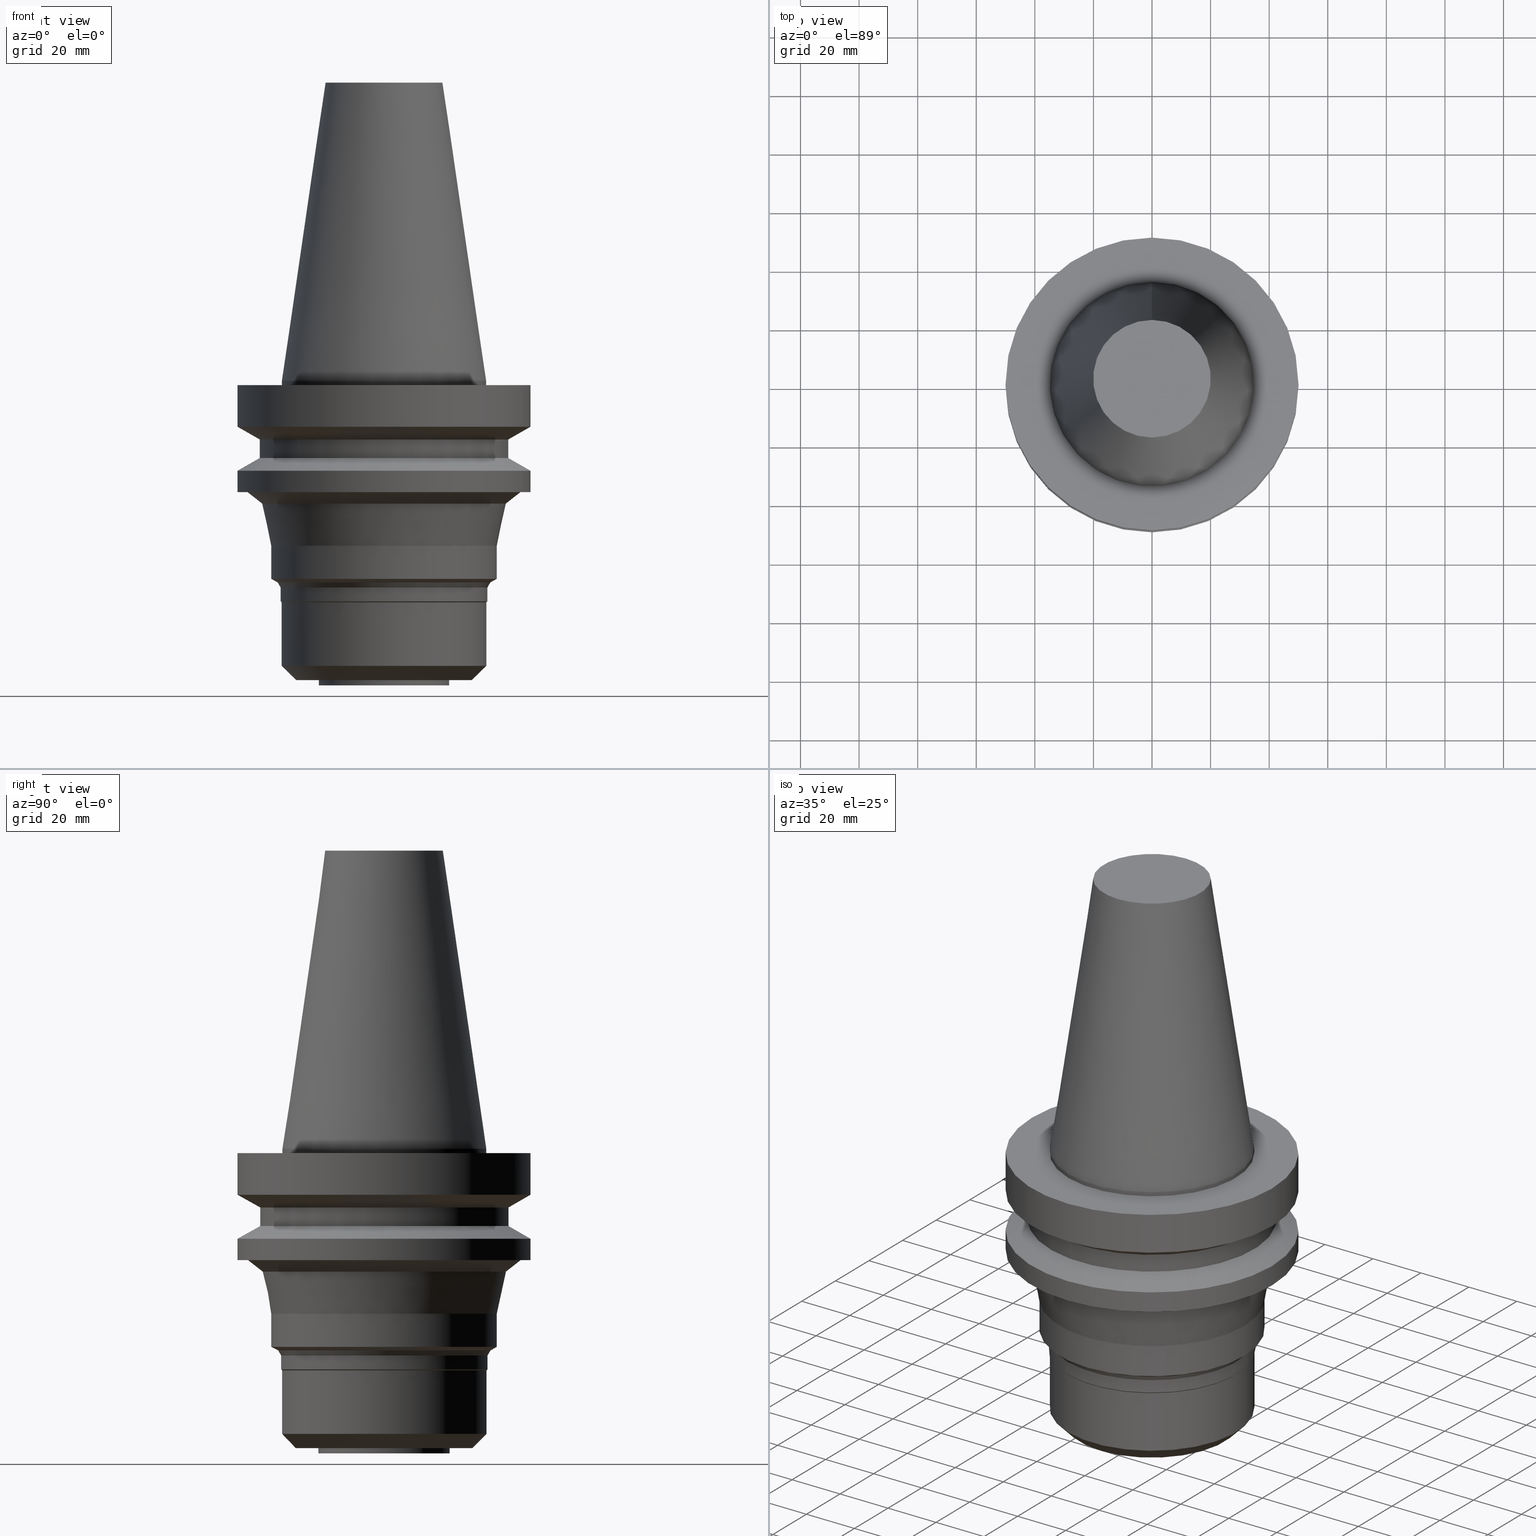
[diagram: canonical four-view strip — front | top / right | iso, engineering-drawing reading convention]
A machine part, canonical four-view strip (front | top / right | iso — engineering-drawing reading convention). The complete STEP part file that produces these views, byte-faithful:
ISO-10303-21;
HEADER;
FILE_DESCRIPTION((''),'1');
FILE_NAME('V:/90_\X2\53D65F9730C730FC30BF\X0\/00_\X2\6DE18DEF30C730FC30BF\X0\/ALL/BBT-BKUS\X2\FF76FF80FF9BFF78FF9E752852A05DE556F3\X0\201801/BBT50-MEGADS/BBT50-MEGA1.000DS-4.stp','2018-02-05T01:28:03',(''),(''),'Spatial Interop R21 SP3','Kubotek KeyCreator 2011 V10.0.2 (22737)',' ');
FILE_SCHEMA(('automotive_design'));
ENDSEC;
DATA;
#1=MECHANICAL_DESIGN_GEOMETRIC_PRESENTATION_REPRESENTATION(' ',(#10,#11,#12,#13,#14,#15,#16,#17,#18,#19,#20,#21,#22,#23,#24,#25,#26,#27,#28,#29,#30,#31,#32,#33,#34,#35,#36,#37,#38,#39,#40,#41,#42,#43,#44,#45,#46,#47,#48,#49,#50,#51,#52,#53),#6);
#2=PRODUCT_DEFINITION_CONTEXT('',#54,'design');
#3=APPLICATION_PROTOCOL_DEFINITION('INTERNATIONAL STANDARD','automotive_design',1994,#54);
#4=PRODUCT_CATEGORY_RELATIONSHIP('NONE','NONE',#55,#56);
#5=SHAPE_DEFINITION_REPRESENTATION(#57,#58);
#6= (GEOMETRIC_REPRESENTATION_CONTEXT(3)GLOBAL_UNCERTAINTY_ASSIGNED_CONTEXT((#61))GLOBAL_UNIT_ASSIGNED_CONTEXT((#63,#64,#65))REPRESENTATION_CONTEXT('NONE','WORKSPACE'));
#10=STYLED_ITEM('',(#67,#68),#69);
#11=STYLED_ITEM('',(#70,#71),#72);
#12=STYLED_ITEM('',(#73),#74);
#13=STYLED_ITEM('',(#75),#76);
#14=STYLED_ITEM('',(#77,#78),#79);
#15=STYLED_ITEM('',(#80),#81);
#16=STYLED_ITEM('',(#82),#83);
#17=STYLED_ITEM('',(#84,#85),#86);
#18=STYLED_ITEM('',(#87),#88);
#19=STYLED_ITEM('',(#89,#90),#91);
#20=STYLED_ITEM('',(#92,#93),#94);
#21=STYLED_ITEM('',(#95,#96),#97);
#22=STYLED_ITEM('',(#98),#99);
#23=STYLED_ITEM('',(#100,#101),#102);
#24=STYLED_ITEM('',(#103,#104),#105);
#25=STYLED_ITEM('',(#106,#107),#108);
#26=STYLED_ITEM('',(#109,#110),#111);
#27=STYLED_ITEM('',(#112),#113);
#28=STYLED_ITEM('',(#114,#115),#116);
#29=STYLED_ITEM('',(#117,#118),#119);
#30=STYLED_ITEM('',(#120),#121);
#31=STYLED_ITEM('',(#122,#123),#124);
#32=STYLED_ITEM('',(#125),#126);
#33=STYLED_ITEM('',(#127),#128);
#34=STYLED_ITEM('',(#129),#130);
#35=STYLED_ITEM('',(#131),#132);
#36=STYLED_ITEM('',(#133,#134),#135);
#37=STYLED_ITEM('',(#136),#137);
#38=STYLED_ITEM('',(#138,#139),#140);
#39=STYLED_ITEM('',(#141),#142);
#40=STYLED_ITEM('',(#143,#144),#145);
#41=STYLED_ITEM('',(#146,#147),#148);
#42=STYLED_ITEM('',(#149),#150);
#43=STYLED_ITEM('',(#151,#152),#153);
#44=STYLED_ITEM('',(#154),#155);
#45=STYLED_ITEM('',(#156),#157);
#46=STYLED_ITEM('',(#158),#159);
#47=STYLED_ITEM('',(#160),#161);
#48=STYLED_ITEM('',(#162,#163),#164);
#49=STYLED_ITEM('',(#165,#166),#167);
#50=STYLED_ITEM('',(#168,#169),#170);
#51=STYLED_ITEM('',(#171),#172);
#52=STYLED_ITEM('',(#173),#174);
#53=STYLED_ITEM('',(#175,#176),#177);
#54=APPLICATION_CONTEXT(' ');
#55=PRODUCT_CATEGORY('part','NONE');
#56=PRODUCT_RELATED_PRODUCT_CATEGORY('detail',' ',(#178));
#57=PRODUCT_DEFINITION_SHAPE('NONE','NONE',#179);
#58=ADVANCED_BREP_SHAPE_REPRESENTATION('Unnamed[1]',(#116,#180),#6);
#61=UNCERTAINTY_MEASURE_WITH_UNIT(LENGTH_MEASURE(1.0E-006),#63,'','');
#63= (CONVERSION_BASED_UNIT('MILLIMETRE',#183)LENGTH_UNIT()NAMED_UNIT(#186));
#64= (NAMED_UNIT(#188)PLANE_ANGLE_UNIT()SI_UNIT($,.RADIAN.));
#65= (NAMED_UNIT(#188)SOLID_ANGLE_UNIT()SI_UNIT($,.STERADIAN.));
#67=PRESENTATION_STYLE_ASSIGNMENT((#194));
#68=PRESENTATION_STYLE_ASSIGNMENT((#195));
#69=ADVANCED_FACE('Unnamed[1]',(#196,#197),#198,.T.);
#70=PRESENTATION_STYLE_ASSIGNMENT((#199));
#71=PRESENTATION_STYLE_ASSIGNMENT((#200));
#72=ADVANCED_FACE('Unnamed[1]',(#201,#202),#203,.T.);
#73=PRESENTATION_STYLE_ASSIGNMENT((#204));
#74=EDGE_CURVE('Unnamed[1]',#205,#205,#206,.T.);
#75=PRESENTATION_STYLE_ASSIGNMENT((#207));
#76=EDGE_CURVE('Unnamed[1]',#208,#208,#209,.T.);
#77=PRESENTATION_STYLE_ASSIGNMENT((#210));
#78=PRESENTATION_STYLE_ASSIGNMENT((#211));
#79=ADVANCED_FACE('Unnamed[1]',(#212,#213),#214,.T.);
#80=PRESENTATION_STYLE_ASSIGNMENT((#215));
#81=EDGE_CURVE('Unnamed[1]',#216,#216,#217,.T.);
#82=PRESENTATION_STYLE_ASSIGNMENT((#218));
#83=EDGE_CURVE('Unnamed[1]',#219,#219,#220,.T.);
#84=PRESENTATION_STYLE_ASSIGNMENT((#221));
#85=PRESENTATION_STYLE_ASSIGNMENT((#222));
#86=ADVANCED_FACE('Unnamed[1]',(#223),#224,.T.);
#87=PRESENTATION_STYLE_ASSIGNMENT((#225));
#88=EDGE_CURVE('Unnamed[1]',#226,#226,#227,.T.);
#89=PRESENTATION_STYLE_ASSIGNMENT((#228));
#90=PRESENTATION_STYLE_ASSIGNMENT((#229));
#91=ADVANCED_FACE('Unnamed[1]',(#230,#231),#232,.T.);
#92=PRESENTATION_STYLE_ASSIGNMENT((#233));
#93=PRESENTATION_STYLE_ASSIGNMENT((#234));
#94=ADVANCED_FACE('Unnamed[1]',(#235,#236),#237,.T.);
#95=PRESENTATION_STYLE_ASSIGNMENT((#238));
#96=PRESENTATION_STYLE_ASSIGNMENT((#239));
#97=ADVANCED_FACE('Unnamed[1]',(#240,#241),#242,.T.);
#98=PRESENTATION_STYLE_ASSIGNMENT((#243));
#99=EDGE_CURVE('Unnamed[1]',#244,#244,#245,.T.);
#100=PRESENTATION_STYLE_ASSIGNMENT((#246));
#101=PRESENTATION_STYLE_ASSIGNMENT((#247));
#102=ADVANCED_FACE('Unnamed[1]',(#248,#249),#250,.T.);
#103=PRESENTATION_STYLE_ASSIGNMENT((#251));
#104=PRESENTATION_STYLE_ASSIGNMENT((#252));
#105=ADVANCED_FACE('Unnamed[1]',(#253,#254),#255,.T.);
#106=PRESENTATION_STYLE_ASSIGNMENT((#256));
#107=PRESENTATION_STYLE_ASSIGNMENT((#257));
#108=ADVANCED_FACE('Unnamed[1]',(#258,#259),#260,.T.);
#109=PRESENTATION_STYLE_ASSIGNMENT((#261));
#110=PRESENTATION_STYLE_ASSIGNMENT((#262));
#111=ADVANCED_FACE('Unnamed[1]',(#263,#264),#265,.T.);
#112=PRESENTATION_STYLE_ASSIGNMENT((#266));
#113=EDGE_CURVE('Unnamed[1]',#267,#267,#268,.T.);
#114=PRESENTATION_STYLE_ASSIGNMENT((#269));
#115=PRESENTATION_STYLE_ASSIGNMENT((#270));
#116=MANIFOLD_SOLID_BREP('Unnamed[1]',#271);
#117=PRESENTATION_STYLE_ASSIGNMENT((#272));
#118=PRESENTATION_STYLE_ASSIGNMENT((#273));
#119=ADVANCED_FACE('Unnamed[1]',(#274,#275),#276,.T.);
#120=PRESENTATION_STYLE_ASSIGNMENT((#277));
#121=EDGE_CURVE('Unnamed[1]',#278,#278,#279,.T.);
#122=PRESENTATION_STYLE_ASSIGNMENT((#280));
#123=PRESENTATION_STYLE_ASSIGNMENT((#281));
#124=ADVANCED_FACE('Unnamed[1]',(#282,#283),#284,.T.);
#125=PRESENTATION_STYLE_ASSIGNMENT((#285));
#126=EDGE_CURVE('Unnamed[1]',#286,#286,#287,.T.);
#127=PRESENTATION_STYLE_ASSIGNMENT((#288));
#128=EDGE_CURVE('Unnamed[1]',#289,#289,#290,.T.);
#129=PRESENTATION_STYLE_ASSIGNMENT((#291));
#130=EDGE_CURVE('Unnamed[1]',#292,#292,#293,.T.);
#131=PRESENTATION_STYLE_ASSIGNMENT((#294));
#132=EDGE_CURVE('Unnamed[1]',#295,#295,#296,.T.);
#133=PRESENTATION_STYLE_ASSIGNMENT((#297));
#134=PRESENTATION_STYLE_ASSIGNMENT((#298));
#135=ADVANCED_FACE('Unnamed[1]',(#299,#300),#301,.T.);
#136=PRESENTATION_STYLE_ASSIGNMENT((#302));
#137=EDGE_CURVE('Unnamed[1]',#303,#303,#304,.T.);
#138=PRESENTATION_STYLE_ASSIGNMENT((#305));
#139=PRESENTATION_STYLE_ASSIGNMENT((#306));
#140=ADVANCED_FACE('Unnamed[1]',(#307,#308),#309,.T.);
#141=PRESENTATION_STYLE_ASSIGNMENT((#310));
#142=EDGE_CURVE('Unnamed[1]',#311,#311,#312,.T.);
#143=PRESENTATION_STYLE_ASSIGNMENT((#313));
#144=PRESENTATION_STYLE_ASSIGNMENT((#314));
#145=ADVANCED_FACE('Unnamed[1]',(#315,#316),#317,.T.);
#146=PRESENTATION_STYLE_ASSIGNMENT((#318));
#147=PRESENTATION_STYLE_ASSIGNMENT((#319));
#148=ADVANCED_FACE('Unnamed[1]',(#320),#321,.T.);
#149=PRESENTATION_STYLE_ASSIGNMENT((#322));
#150=EDGE_CURVE('Unnamed[1]',#323,#323,#324,.T.);
#151=PRESENTATION_STYLE_ASSIGNMENT((#325));
#152=PRESENTATION_STYLE_ASSIGNMENT((#326));
#153=ADVANCED_FACE('Unnamed[1]',(#327,#328),#329,.T.);
#154=PRESENTATION_STYLE_ASSIGNMENT((#330));
#155=EDGE_CURVE('Unnamed[1]',#331,#331,#332,.T.);
#156=PRESENTATION_STYLE_ASSIGNMENT((#333));
#157=EDGE_CURVE('Unnamed[1]',#334,#334,#335,.T.);
#158=PRESENTATION_STYLE_ASSIGNMENT((#336));
#159=EDGE_CURVE('Unnamed[1]',#337,#337,#338,.T.);
#160=PRESENTATION_STYLE_ASSIGNMENT((#339));
#161=EDGE_CURVE('Unnamed[1]',#340,#340,#341,.T.);
#162=PRESENTATION_STYLE_ASSIGNMENT((#342));
#163=PRESENTATION_STYLE_ASSIGNMENT((#343));
#164=ADVANCED_FACE('Unnamed[1]',(#344,#345),#346,.T.);
#165=PRESENTATION_STYLE_ASSIGNMENT((#347));
#166=PRESENTATION_STYLE_ASSIGNMENT((#348));
#167=ADVANCED_FACE('Unnamed[1]',(#349,#350),#351,.T.);
#168=PRESENTATION_STYLE_ASSIGNMENT((#352));
#169=PRESENTATION_STYLE_ASSIGNMENT((#353));
#170=ADVANCED_FACE('Unnamed[1]',(#354,#355),#356,.T.);
#171=PRESENTATION_STYLE_ASSIGNMENT((#357));
#172=EDGE_CURVE('Unnamed[1]',#358,#358,#359,.T.);
#173=PRESENTATION_STYLE_ASSIGNMENT((#360));
#174=EDGE_CURVE('Unnamed[1]',#361,#361,#362,.T.);
#175=PRESENTATION_STYLE_ASSIGNMENT((#363));
#176=PRESENTATION_STYLE_ASSIGNMENT((#364));
#177=ADVANCED_FACE('Unnamed[1]',(#365,#366),#367,.T.);
#178=PRODUCT('Unnamed[1]','Unnamed[1]','PART-Unnamed[1]-DESC',(#368));
#179=PRODUCT_DEFINITION('NONE','NONE',#369,#2);
#180=AXIS2_PLACEMENT_3D('',#370,#371,#372);
#183=LENGTH_MEASURE_WITH_UNIT(LENGTH_MEASURE(1.0),#373);
#186=DIMENSIONAL_EXPONENTS(1.0,0.0,0.0,0.0,0.0,0.0,0.0);
#188=DIMENSIONAL_EXPONENTS(0.0,0.0,0.0,0.0,0.0,0.0,0.0);
#194=SURFACE_STYLE_USAGE(.BOTH.,#374);
#195=CURVE_STYLE('',#375,POSITIVE_LENGTH_MEASURE(1000.0),#376);
#196=FACE_BOUND('',#377,.T.);
#197=FACE_BOUND('',#378,.T.);
#198=CONICAL_SURFACE('',#379,40.0702391628491,0.215194727078598);
#199=SURFACE_STYLE_USAGE(.BOTH.,#380);
#200=CURVE_STYLE('',#381,POSITIVE_LENGTH_MEASURE(1000.0),#382);
#201=FACE_BOUND('',#383,.T.);
#202=FACE_OUTER_BOUND('',#384,.T.);
#203=PLANE('',#385);
#204=CURVE_STYLE('',#386,POSITIVE_LENGTH_MEASURE(1000.0),#387);
#205=VERTEX_POINT('',#388);
#206=CIRCLE('',#389,34.925);
#207=CURVE_STYLE('',#390,POSITIVE_LENGTH_MEASURE(1000.0),#391);
#208=VERTEX_POINT('',#392);
#209=CIRCLE('',#393,35.0000000000001);
#210=SURFACE_STYLE_USAGE(.BOTH.,#394);
#211=CURVE_STYLE('',#395,POSITIVE_LENGTH_MEASURE(1000.0),#396);
#212=FACE_BOUND('',#397,.T.);
#213=FACE_BOUND('',#398,.T.);
#214=CYLINDRICAL_SURFACE('',#399,22.3848075809217);
#215=CURVE_STYLE('',#400,POSITIVE_LENGTH_MEASURE(1000.0),#401);
#216=VERTEX_POINT('',#402);
#217=CIRCLE('',#403,42.5);
#218=CURVE_STYLE('',#404,POSITIVE_LENGTH_MEASURE(1000.0),#405);
#219=VERTEX_POINT('',#406);
#220=CIRCLE('',#407,30.1253951904742);
#221=SURFACE_STYLE_USAGE(.BOTH.,#408);
#222=CURVE_STYLE('',#409,POSITIVE_LENGTH_MEASURE(1000.0),#410);
#223=FACE_OUTER_BOUND('',#411,.T.);
#224=PLANE('',#412);
#225=CURVE_STYLE('',#413,POSITIVE_LENGTH_MEASURE(1000.0),#414);
#226=VERTEX_POINT('',#415);
#227=CIRCLE('',#416,36.3499999999999);
#228=SURFACE_STYLE_USAGE(.BOTH.,#417);
#229=CURVE_STYLE('',#418,POSITIVE_LENGTH_MEASURE(1000.0),#419);
#230=FACE_BOUND('',#420,.T.);
#231=FACE_BOUND('',#421,.T.);
#232=CYLINDRICAL_SURFACE('',#422,34.925);
#233=SURFACE_STYLE_USAGE(.BOTH.,#423);
#234=CURVE_STYLE('',#424,POSITIVE_LENGTH_MEASURE(1000.0),#425);
#235=FACE_BOUND('',#426,.T.);
#236=FACE_BOUND('',#427,.T.);
#237=CYLINDRICAL_SURFACE('',#428,50.0);
#238=SURFACE_STYLE_USAGE(.BOTH.,#429);
#239=CURVE_STYLE('',#430,POSITIVE_LENGTH_MEASURE(1000.0),#431);
#240=FACE_BOUND('',#432,.T.);
#241=FACE_OUTER_BOUND('',#433,.T.);
#242=PLANE('',#434);
#243=CURVE_STYLE('',#435,POSITIVE_LENGTH_MEASURE(1000.0),#436);
#244=VERTEX_POINT('',#437);
#245=CIRCLE('',#438,34.9999999999999);
#246=SURFACE_STYLE_USAGE(.BOTH.,#439);
#247=CURVE_STYLE('',#440,POSITIVE_LENGTH_MEASURE(1000.0),#441);
#248=FACE_BOUND('',#442,.T.);
#249=FACE_BOUND('',#443,.T.);
#250=CONICAL_SURFACE('',#444,35.8499999999999,0.523598775598284);
#251=SURFACE_STYLE_USAGE(.BOTH.,#445);
#252=CURVE_STYLE('',#446,POSITIVE_LENGTH_MEASURE(1000.0),#447);
#253=FACE_BOUND('',#448,.T.);
#254=FACE_BOUND('',#449,.T.);
#255=CONICAL_SURFACE('',#450,35.175,0.785398163398342);
#256=SURFACE_STYLE_USAGE(.BOTH.,#451);
#257=CURVE_STYLE('',#452,POSITIVE_LENGTH_MEASURE(1000.0),#453);
#258=FACE_BOUND('',#454,.T.);
#259=FACE_BOUND('',#455,.T.);
#260=CYLINDRICAL_SURFACE('',#456,35.3499999999999);
#261=SURFACE_STYLE_USAGE(.BOTH.,#457);
#262=CURVE_STYLE('',#458,POSITIVE_LENGTH_MEASURE(1000.0),#459);
#263=FACE_BOUND('',#460,.T.);
#264=FACE_BOUND('',#461,.T.);
#265=CONICAL_SURFACE('',#462,32.5626975952371,0.785398163397444);
#266=CURVE_STYLE('',#463,POSITIVE_LENGTH_MEASURE(1000.0),#464);
#267=VERTEX_POINT('',#465);
#268=CIRCLE('',#466,20.0791666651884);
#269=SURFACE_STYLE_USAGE(.BOTH.,#467);
#270=CURVE_STYLE('',#468,POSITIVE_LENGTH_MEASURE(1000.0),#469);
#271=CLOSED_SHELL('',(#86,#164,#91,#177,#167,#124,#145,#140,#94,#97,#153,#69,#119,#135,#102,#108,#105,#170,#111,#72,#79,#148));
#272=SURFACE_STYLE_USAGE(.BOTH.,#470);
#273=CURVE_STYLE('',#471,POSITIVE_LENGTH_MEASURE(1000.0),#472);
#274=FACE_BOUND('',#473,.T.);
#275=FACE_BOUND('',#474,.T.);
#276=CYLINDRICAL_SURFACE('',#475,38.5000000000002);
#277=CURVE_STYLE('',#476,POSITIVE_LENGTH_MEASURE(1000.0),#477);
#278=VERTEX_POINT('',#478);
#279=CIRCLE('',#479,34.925);
#280=SURFACE_STYLE_USAGE(.BOTH.,#480);
#281=CURVE_STYLE('',#481,POSITIVE_LENGTH_MEASURE(1000.0),#482);
#282=FACE_BOUND('',#483,.T.);
#283=FACE_BOUND('',#484,.T.);
#284=CONICAL_SURFACE('',#485,46.25,1.04719755108882);
#285=CURVE_STYLE('',#486,POSITIVE_LENGTH_MEASURE(1000.0),#487);
#286=VERTEX_POINT('',#488);
#287=CIRCLE('',#489,50.0);
#288=CURVE_STYLE('',#490,POSITIVE_LENGTH_MEASURE(1000.0),#491);
#289=VERTEX_POINT('',#492);
#290=CIRCLE('',#493,46.6625769728258);
#291=CURVE_STYLE('',#494,POSITIVE_LENGTH_MEASURE(1000.0),#495);
#292=VERTEX_POINT('',#496);
#293=CIRCLE('',#497,41.640478325698);
#294=CURVE_STYLE('',#498,POSITIVE_LENGTH_MEASURE(1000.0),#499);
#295=VERTEX_POINT('',#500);
#296=CIRCLE('',#501,22.3848075809219);
#297=SURFACE_STYLE_USAGE(.BOTH.,#502);
#298=CURVE_STYLE('',#503,POSITIVE_LENGTH_MEASURE(1000.0),#504);
#299=FACE_BOUND('',#505,.T.);
#300=FACE_BOUND('',#506,.T.);
#301=CONICAL_SURFACE('',#507,37.4250000000001,1.04719755119655);
#302=CURVE_STYLE('',#508,POSITIVE_LENGTH_MEASURE(1000.0),#509);
#303=VERTEX_POINT('',#510);
#304=CIRCLE('',#511,38.5000000000003);
#305=SURFACE_STYLE_USAGE(.BOTH.,#512);
#306=CURVE_STYLE('',#513,POSITIVE_LENGTH_MEASURE(1000.0),#514);
#307=FACE_BOUND('',#515,.T.);
#308=FACE_BOUND('',#516,.T.);
#309=CONICAL_SURFACE('',#517,46.25,1.04719755108882);
#310=CURVE_STYLE('',#518,POSITIVE_LENGTH_MEASURE(1000.0),#519);
#311=VERTEX_POINT('',#520);
#312=CIRCLE('',#521,50.0);
#313=SURFACE_STYLE_USAGE(.BOTH.,#522);
#314=CURVE_STYLE('',#523,POSITIVE_LENGTH_MEASURE(1000.0),#524);
#315=FACE_BOUND('',#525,.T.);
#316=FACE_BOUND('',#526,.T.);
#317=CYLINDRICAL_SURFACE('',#527,42.5);
#318=SURFACE_STYLE_USAGE(.BOTH.,#528);
#319=CURVE_STYLE('',#529,POSITIVE_LENGTH_MEASURE(1000.0),#530);
#320=FACE_OUTER_BOUND('',#531,.T.);
#321=PLANE('',#532);
#322=CURVE_STYLE('',#533,POSITIVE_LENGTH_MEASURE(1000.0),#534);
#323=VERTEX_POINT('',#535);
#324=CIRCLE('',#536,42.5);
#325=SURFACE_STYLE_USAGE(.BOTH.,#537);
#326=CURVE_STYLE('',#538,POSITIVE_LENGTH_MEASURE(1000.0),#539);
#327=FACE_BOUND('',#540,.T.);
#328=FACE_BOUND('',#541,.T.);
#329=CONICAL_SURFACE('',#542,44.1515276492619,0.906506497862858);
#330=CURVE_STYLE('',#543,POSITIVE_LENGTH_MEASURE(1000.0),#544);
#331=VERTEX_POINT('',#545);
#332=CIRCLE('',#546,38.5000000000001);
#333=CURVE_STYLE('',#547,POSITIVE_LENGTH_MEASURE(1000.0),#548);
#334=VERTEX_POINT('',#549);
#335=CIRCLE('',#550,35.3499999999999);
#336=CURVE_STYLE('',#551,POSITIVE_LENGTH_MEASURE(1000.0),#552);
#337=VERTEX_POINT('',#553);
#338=CIRCLE('',#554,22.3848075809216);
#339=CURVE_STYLE('',#555,POSITIVE_LENGTH_MEASURE(1000.0),#556);
#340=VERTEX_POINT('',#557);
#341=CIRCLE('',#558,35.3499999999999);
#342=SURFACE_STYLE_USAGE(.BOTH.,#559);
#343=CURVE_STYLE('',#560,POSITIVE_LENGTH_MEASURE(1000.0),#561);
#344=FACE_BOUND('',#562,.T.);
#345=FACE_BOUND('',#563,.T.);
#346=CONICAL_SURFACE('',#564,27.5020833325942,0.144812498253157);
#347=SURFACE_STYLE_USAGE(.BOTH.,#565);
#348=CURVE_STYLE('',#566,POSITIVE_LENGTH_MEASURE(1000.0),#567);
#349=FACE_BOUND('',#568,.T.);
#350=FACE_BOUND('',#569,.T.);
#351=CYLINDRICAL_SURFACE('',#570,50.0);
#352=SURFACE_STYLE_USAGE(.BOTH.,#571);
#353=CURVE_STYLE('',#572,POSITIVE_LENGTH_MEASURE(1000.0),#573);
#354=FACE_BOUND('',#574,.T.);
#355=FACE_BOUND('',#575,.T.);
#356=CYLINDRICAL_SURFACE('',#576,35.0);
#357=CURVE_STYLE('',#577,POSITIVE_LENGTH_MEASURE(1000.0),#578);
#358=VERTEX_POINT('',#579);
#359=CIRCLE('',#580,50.0);
#360=CURVE_STYLE('',#581,POSITIVE_LENGTH_MEASURE(1000.0),#582);
#361=VERTEX_POINT('',#583);
#362=CIRCLE('',#584,50.0);
#363=SURFACE_STYLE_USAGE(.BOTH.,#585);
#364=CURVE_STYLE('',#586,POSITIVE_LENGTH_MEASURE(1000.0),#587);
#365=FACE_OUTER_BOUND('',#588,.T.);
#366=FACE_BOUND('',#589,.T.);
#367=PLANE('',#590);
#368=PRODUCT_CONTEXT('',#54,'mechanical');
#369=PRODUCT_DEFINITION_FORMATION_WITH_SPECIFIED_SOURCE(' ','NONE',#178,.NOT_KNOWN.);
#370=CARTESIAN_POINT('',(0.0,0.0,0.0));
#371=DIRECTION('',(0.0,0.0,1.0));
#372=DIRECTION('',(1.0,0.0,0.0));
#373= (NAMED_UNIT(#186)LENGTH_UNIT()SI_UNIT(.MILLI.,.METRE.));
#374=SURFACE_SIDE_STYLE('',(#592));
#375=DRAUGHTING_PRE_DEFINED_CURVE_FONT('continuous');
#376=COLOUR_RGB('',0.0,1.0,0.0);
#377=EDGE_LOOP('',(#593));
#378=EDGE_LOOP('',(#594));
#379=AXIS2_PLACEMENT_3D('',#595,#596,#597);
#380=SURFACE_SIDE_STYLE('',(#598));
#381=DRAUGHTING_PRE_DEFINED_CURVE_FONT('continuous');
#382=COLOUR_RGB('',0.0,1.0,0.0);
#383=EDGE_LOOP('',(#599));
#384=EDGE_LOOP('',(#600));
#385=AXIS2_PLACEMENT_3D('',#601,#602,#603);
#386=DRAUGHTING_PRE_DEFINED_CURVE_FONT('continuous');
#387=COLOUR_RGB('',0.0,1.0,0.0);
#388=CARTESIAN_POINT('',(-4.30483861169435E-031,34.925,4.27707894602213E-015));
#389=AXIS2_PLACEMENT_3D('',#604,#605,#606);
#390=DRAUGHTING_PRE_DEFINED_CURVE_FONT('continuous');
#391=COLOUR_RGB('',0.0,1.0,0.0);
#392=CARTESIAN_POINT('',(4.63222651777481E-015,35.0000000000001,-75.6499999999992));
#393=AXIS2_PLACEMENT_3D('',#607,#608,#609);
#394=SURFACE_SIDE_STYLE('',(#610));
#395=DRAUGHTING_PRE_DEFINED_CURVE_FONT('continuous');
#396=COLOUR_RGB('',0.0,1.0,0.0);
#397=EDGE_LOOP('',(#611));
#398=EDGE_LOOP('',(#612));
#399=AXIS2_PLACEMENT_3D('',#613,#614,#615);
#400=DRAUGHTING_PRE_DEFINED_CURVE_FONT('continuous');
#401=COLOUR_RGB('',0.0,1.0,0.0);
#402=CARTESIAN_POINT('',(1.2264915470779E-015,42.5,-20.03012702));
#403=AXIS2_PLACEMENT_3D('',#616,#617,#618);
#404=DRAUGHTING_PRE_DEFINED_CURVE_FONT('continuous');
#405=COLOUR_RGB('',0.0,1.0,0.0);
#406=CARTESIAN_POINT('',(6.25794514364296E-015,30.1253951904742,-102.2));
#407=AXIS2_PLACEMENT_3D('',#619,#620,#621);
#408=SURFACE_SIDE_STYLE('',(#622));
#409=DRAUGHTING_PRE_DEFINED_CURVE_FONT('continuous');
#410=COLOUR_RGB('',0.0,1.0,0.0);
#411=EDGE_LOOP('',(#623));
#412=AXIS2_PLACEMENT_3D('',#624,#625,#626);
#413=DRAUGHTING_PRE_DEFINED_CURVE_FONT('continuous');
#414=COLOUR_RGB('',0.0,1.0,0.0);
#415=CARTESIAN_POINT('',(4.21588972315474E-015,36.3499999999999,-68.8507041555166));
#416=AXIS2_PLACEMENT_3D('',#627,#628,#629);
#417=SURFACE_SIDE_STYLE('',(#630));
#418=DRAUGHTING_PRE_DEFINED_CURVE_FONT('continuous');
#419=COLOUR_RGB('',0.0,1.0,0.0);
#420=EDGE_LOOP('',(#631));
#421=EDGE_LOOP('',(#632));
#422=AXIS2_PLACEMENT_3D('',#633,#634,#635);
#423=SURFACE_SIDE_STYLE('',(#636));
#424=DRAUGHTING_PRE_DEFINED_CURVE_FONT('continuous');
#425=COLOUR_RGB('',0.0,1.0,0.0);
#426=EDGE_LOOP('',(#637));
#427=EDGE_LOOP('',(#638));
#428=AXIS2_PLACEMENT_3D('',#639,#640,#641);
#429=SURFACE_SIDE_STYLE('',(#642));
#430=DRAUGHTING_PRE_DEFINED_CURVE_FONT('continuous');
#431=COLOUR_RGB('',0.0,1.0,0.0);
#432=EDGE_LOOP('',(#643));
#433=EDGE_LOOP('',(#644));
#434=AXIS2_PLACEMENT_3D('',#645,#646,#647);
#435=DRAUGHTING_PRE_DEFINED_CURVE_FONT('continuous');
#436=COLOUR_RGB('',0.0,1.0,0.0);
#437=CARTESIAN_POINT('',(5.95946168478826E-015,35.0,-97.325395190474));
#438=AXIS2_PLACEMENT_3D('',#648,#649,#650);
#439=SURFACE_SIDE_STYLE('',(#651));
#440=DRAUGHTING_PRE_DEFINED_CURVE_FONT('continuous');
#441=COLOUR_RGB('',0.0,1.0,0.0);
#442=EDGE_LOOP('',(#652));
#443=EDGE_LOOP('',(#653));
#444=AXIS2_PLACEMENT_3D('',#654,#655,#656);
#445=SURFACE_SIDE_STYLE('',(#657));
#446=DRAUGHTING_PRE_DEFINED_CURVE_FONT('continuous');
#447=COLOUR_RGB('',0.0,1.0,0.0);
#448=EDGE_LOOP('',(#658));
#449=EDGE_LOOP('',(#659));
#450=AXIS2_PLACEMENT_3D('',#660,#661,#662);
#451=SURFACE_SIDE_STYLE('',(#663));
#452=DRAUGHTING_PRE_DEFINED_CURVE_FONT('continuous');
#453=COLOUR_RGB('',0.0,1.0,0.0);
#454=EDGE_LOOP('',(#664));
#455=EDGE_LOOP('',(#665));
#456=AXIS2_PLACEMENT_3D('',#666,#667,#668);
#457=SURFACE_SIDE_STYLE('',(#669));
#458=DRAUGHTING_PRE_DEFINED_CURVE_FONT('continuous');
#459=COLOUR_RGB('',0.0,1.0,0.0);
#460=EDGE_LOOP('',(#670));
#461=EDGE_LOOP('',(#671));
#462=AXIS2_PLACEMENT_3D('',#672,#673,#674);
#463=DRAUGHTING_PRE_DEFINED_CURVE_FONT('continuous');
#464=COLOUR_RGB('',0.0,1.0,0.0);
#465=CARTESIAN_POINT('',(-6.23345220766003E-015,20.0791666651884,101.8));
#466=AXIS2_PLACEMENT_3D('',#675,#676,#677);
#467=SURFACE_SIDE_STYLE('',(#678));
#468=DRAUGHTING_PRE_DEFINED_CURVE_FONT('continuous');
#469=COLOUR_RGB('',0.0,1.0,0.0);
#470=SURFACE_SIDE_STYLE('',(#679));
#471=DRAUGHTING_PRE_DEFINED_CURVE_FONT('continuous');
#472=COLOUR_RGB('',0.0,1.0,0.0);
#473=EDGE_LOOP('',(#680));
#474=EDGE_LOOP('',(#681));
#475=AXIS2_PLACEMENT_3D('',#682,#683,#684);
#476=DRAUGHTING_PRE_DEFINED_CURVE_FONT('continuous');
#477=COLOUR_RGB('',0.0,1.0,0.0);
#478=CARTESIAN_POINT('',(9.18485099360511E-017,34.925,-1.5));
#479=AXIS2_PLACEMENT_3D('',#685,#686,#687);
#480=SURFACE_SIDE_STYLE('',(#688));
#481=DRAUGHTING_PRE_DEFINED_CURVE_FONT('continuous');
#482=COLOUR_RGB('',0.0,1.0,0.0);
#483=EDGE_LOOP('',(#689));
#484=EDGE_LOOP('',(#690));
#485=AXIS2_PLACEMENT_3D('',#691,#692,#693);
#486=DRAUGHTING_PRE_DEFINED_CURVE_FONT('continuous');
#487=COLOUR_RGB('',0.0,1.0,0.0);
#488=CARTESIAN_POINT('',(1.87983283669119E-015,50.0,-30.7000000000001));
#489=AXIS2_PLACEMENT_3D('',#694,#695,#696);
#490=DRAUGHTING_PRE_DEFINED_CURVE_FONT('continuous');
#491=COLOUR_RGB('',0.0,1.0,0.0);
#492=CARTESIAN_POINT('',(2.32682891837996E-015,46.6625769728258,-37.9999999999998));
#493=AXIS2_PLACEMENT_3D('',#697,#698,#699);
#494=DRAUGHTING_PRE_DEFINED_CURVE_FONT('continuous');
#495=COLOUR_RGB('',0.0,1.0,0.0);
#496=CARTESIAN_POINT('',(2.5676135627592E-015,41.640478325698,-41.9323116599312));
#497=AXIS2_PLACEMENT_3D('',#700,#701,#702);
#498=DRAUGHTING_PRE_DEFINED_CURVE_FONT('continuous');
#499=COLOUR_RGB('',0.0,1.0,0.0);
#500=CARTESIAN_POINT('',(6.25794514364296E-015,22.3848075809219,-102.2));
#501=AXIS2_PLACEMENT_3D('',#703,#704,#705);
#502=SURFACE_SIDE_STYLE('',(#706));
#503=DRAUGHTING_PRE_DEFINED_CURVE_FONT('continuous');
#504=COLOUR_RGB('',0.0,1.0,0.0);
#505=EDGE_LOOP('',(#707));
#506=EDGE_LOOP('',(#708));
#507=AXIS2_PLACEMENT_3D('',#709,#710,#711);
#508=DRAUGHTING_PRE_DEFINED_CURVE_FONT('continuous');
#509=COLOUR_RGB('',0.0,1.0,0.0);
#510=CARTESIAN_POINT('',(4.1398818310461E-015,38.5000000000003,-67.6094010767585));
#511=AXIS2_PLACEMENT_3D('',#712,#713,#714);
#512=SURFACE_SIDE_STYLE('',(#715));
#513=DRAUGHTING_PRE_DEFINED_CURVE_FONT('continuous');
#514=COLOUR_RGB('',0.0,1.0,0.0);
#515=EDGE_LOOP('',(#716));
#516=EDGE_LOOP('',(#717));
#517=AXIS2_PLACEMENT_3D('',#718,#719,#720);
#518=DRAUGHTING_PRE_DEFINED_CURVE_FONT('continuous');
#519=COLOUR_RGB('',0.0,1.0,0.0);
#520=CARTESIAN_POINT('',(2.32682891837996E-015,50.0,-37.9999999999998));
#521=AXIS2_PLACEMENT_3D('',#721,#722,#723);
#522=SURFACE_SIDE_STYLE('',(#724));
#523=DRAUGHTING_PRE_DEFINED_CURVE_FONT('continuous');
#524=COLOUR_RGB('',0.0,1.0,0.0);
#525=EDGE_LOOP('',(#725));
#526=EDGE_LOOP('',(#726));
#527=AXIS2_PLACEMENT_3D('',#727,#728,#729);
#528=SURFACE_SIDE_STYLE('',(#730));
#529=DRAUGHTING_PRE_DEFINED_CURVE_FONT('continuous');
#530=COLOUR_RGB('',0.0,1.0,0.0);
#531=EDGE_LOOP('',(#731));
#532=AXIS2_PLACEMENT_3D('',#732,#733,#734);
#533=DRAUGHTING_PRE_DEFINED_CURVE_FONT('continuous');
#534=COLOUR_RGB('',0.0,1.0,0.0);
#535=CARTESIAN_POINT('',(1.61468902694397E-015,42.5,-26.3698729800001));
#536=AXIS2_PLACEMENT_3D('',#735,#736,#737);
#537=SURFACE_SIDE_STYLE('',(#738));
#538=DRAUGHTING_PRE_DEFINED_CURVE_FONT('continuous');
#539=COLOUR_RGB('',0.0,1.0,0.0);
#540=EDGE_LOOP('',(#739));
#541=EDGE_LOOP('',(#740));
#542=AXIS2_PLACEMENT_3D('',#741,#742,#743);
#543=DRAUGHTING_PRE_DEFINED_CURVE_FONT('continuous');
#544=COLOUR_RGB('',0.0,1.0,0.0);
#545=CARTESIAN_POINT('',(3.44738073959969E-015,38.5000000000001,-56.2999999999982));
#546=AXIS2_PLACEMENT_3D('',#744,#745,#746);
#547=DRAUGHTING_PRE_DEFINED_CURVE_FONT('continuous');
#548=COLOUR_RGB('',0.0,1.0,0.0);
#549=CARTESIAN_POINT('',(4.32194724702722E-015,35.3499999999999,-70.5827549630854));
#550=AXIS2_PLACEMENT_3D('',#747,#748,#749);
#551=DRAUGHTING_PRE_DEFINED_CURVE_FONT('continuous');
#552=COLOUR_RGB('',0.0,1.0,0.0);
#553=CARTESIAN_POINT('',(6.36816335556624E-015,22.3848075809216,-104.0));
#554=AXIS2_PLACEMENT_3D('',#750,#751,#752);
#555=DRAUGHTING_PRE_DEFINED_CURVE_FONT('continuous');
#556=COLOUR_RGB('',0.0,1.0,0.0);
#557=CARTESIAN_POINT('',(4.61079519878978E-015,35.3499999999999,-75.3));
#558=AXIS2_PLACEMENT_3D('',#753,#754,#755);
#559=SURFACE_SIDE_STYLE('',(#756));
#560=DRAUGHTING_PRE_DEFINED_CURVE_FONT('continuous');
#561=COLOUR_RGB('',0.0,1.0,0.0);
#562=EDGE_LOOP('',(#757));
#563=EDGE_LOOP('',(#758));
#564=AXIS2_PLACEMENT_3D('',#759,#760,#761);
#565=SURFACE_SIDE_STYLE('',(#762));
#566=DRAUGHTING_PRE_DEFINED_CURVE_FONT('continuous');
#567=COLOUR_RGB('',0.0,1.0,0.0);
#568=EDGE_LOOP('',(#763));
#569=EDGE_LOOP('',(#764));
#570=AXIS2_PLACEMENT_3D('',#765,#766,#767);
#571=SURFACE_SIDE_STYLE('',(#768));
#572=DRAUGHTING_PRE_DEFINED_CURVE_FONT('continuous');
#573=COLOUR_RGB('',0.0,1.0,0.0);
#574=EDGE_LOOP('',(#769));
#575=EDGE_LOOP('',(#770));
#576=AXIS2_PLACEMENT_3D('',#771,#772,#773);
#577=DRAUGHTING_PRE_DEFINED_CURVE_FONT('continuous');
#578=COLOUR_RGB('',0.0,1.0,0.0);
#579=CARTESIAN_POINT('',(9.18485099360509E-017,50.0,-1.49999999999999));
#580=AXIS2_PLACEMENT_3D('',#774,#775,#776);
#581=DRAUGHTING_PRE_DEFINED_CURVE_FONT('continuous');
#582=COLOUR_RGB('',0.0,1.0,0.0);
#583=CARTESIAN_POINT('',(9.61347737330674E-016,50.0,-15.7));
#584=AXIS2_PLACEMENT_3D('',#777,#778,#779);
#585=SURFACE_SIDE_STYLE('',(#780));
#586=DRAUGHTING_PRE_DEFINED_CURVE_FONT('continuous');
#587=COLOUR_RGB('',0.0,1.0,0.0);
#588=EDGE_LOOP('',(#781));
#589=EDGE_LOOP('',(#782));
#590=AXIS2_PLACEMENT_3D('',#783,#784,#785);
#592=SURFACE_STYLE_FILL_AREA(#786);
#593=ORIENTED_EDGE('',*,*,#155,.F.);
#594=ORIENTED_EDGE('',*,*,#130,.T.);
#595=CARTESIAN_POINT('',(3.00749715117945E-015,6.01499430235889E-015,-49.1161558299647));
#596=DIRECTION('',(-6.12323399573677E-017,-1.2246467991475E-016,1.0));
#597=DIRECTION('',(-1.23259516440767E-032,1.0,1.2246467991475E-016));
#598=SURFACE_STYLE_FILL_AREA(#787);
#599=ORIENTED_EDGE('',*,*,#132,.F.);
#600=ORIENTED_EDGE('',*,*,#83,.T.);
#601=CARTESIAN_POINT('',(6.25794514364296E-015,26.2551013856981,-102.2));
#602=DIRECTION('',(6.12323399573677E-017,1.22464679914735E-016,-1.0));
#603=DIRECTION('',(-1.23259516440783E-032,1.0,1.22464679914735E-016));
#604=CARTESIAN_POINT('',(0.0,0.0,0.0));
#605=DIRECTION('',(6.12323399573677E-017,1.22464679914705E-016,-1.0));
#606=DIRECTION('',(-1.23259516440793E-032,1.0,1.22464679914705E-016));
#607=CARTESIAN_POINT('',(4.63222651777482E-015,9.26445303554963E-015,-75.6499999999992));
#608=DIRECTION('',(6.12323399573677E-017,1.22464679914708E-016,-1.0));
#609=DIRECTION('',(-1.23259516440783E-032,1.0,1.22464679914708E-016));
#610=SURFACE_STYLE_FILL_AREA(#788);
#611=ORIENTED_EDGE('',*,*,#159,.F.);
#612=ORIENTED_EDGE('',*,*,#132,.T.);
#613=CARTESIAN_POINT('',(6.3130542496046E-015,1.26261084992092E-014,-103.1));
#614=DIRECTION('',(6.12323399573677E-017,1.22464679914767E-016,-1.0));
#615=DIRECTION('',(-1.23259516440784E-032,1.0,1.22464679914767E-016));
#616=CARTESIAN_POINT('',(1.2264915470779E-015,2.45298309415579E-015,-20.03012702));
#617=DIRECTION('',(6.12323399573677E-017,1.22464679914763E-016,-1.0));
#618=DIRECTION('',(-1.23259516440783E-032,1.0,1.22464679914763E-016));
#619=CARTESIAN_POINT('',(6.25794514364296E-015,1.25158902872859E-014,-102.2));
#620=DIRECTION('',(6.12323399573677E-017,1.22464679914738E-016,-1.0));
#621=DIRECTION('',(-1.23259516440807E-032,1.0,1.22464679914738E-016));
#622=SURFACE_STYLE_FILL_AREA(#789);
#623=ORIENTED_EDGE('',*,*,#113,.F.);
#624=CARTESIAN_POINT('',(-6.23345220766003E-015,10.0395833325942,101.8));
#625=DIRECTION('',(-6.12323399573677E-017,-1.22464679914735E-016,1.0));
#626=DIRECTION('',(1.23259516440783E-032,-1.0,-1.22464679914735E-016));
#627=CARTESIAN_POINT('',(4.21588972315474E-015,8.43177944630947E-015,-68.8507041555166));
#628=DIRECTION('',(6.12323399573677E-017,1.22464679914768E-016,-1.0));
#629=DIRECTION('',(-1.23259516440803E-032,1.0,1.22464679914768E-016));
#630=SURFACE_STYLE_FILL_AREA(#790);
#631=ORIENTED_EDGE('',*,*,#121,.F.);
#632=ORIENTED_EDGE('',*,*,#74,.T.);
#633=CARTESIAN_POINT('',(4.59242549680257E-017,9.18485099360515E-017,-0.75));
#634=DIRECTION('',(6.12323399573677E-017,1.22464679914705E-016,-1.0));
#635=DIRECTION('',(-1.23259516440793E-032,1.0,1.22464679914705E-016));
#636=SURFACE_STYLE_FILL_AREA(#791);
#637=ORIENTED_EDGE('',*,*,#142,.F.);
#638=ORIENTED_EDGE('',*,*,#126,.T.);
#639=CARTESIAN_POINT('',(2.10333087753557E-015,4.20666175507115E-015,-34.3499999999999));
#640=DIRECTION('',(6.12323399573677E-017,1.22464679914736E-016,-1.0));
#641=DIRECTION('',(-1.23259516440783E-032,1.0,1.22464679914736E-016));
#642=SURFACE_STYLE_FILL_AREA(#792);
#643=ORIENTED_EDGE('',*,*,#128,.F.);
#644=ORIENTED_EDGE('',*,*,#142,.T.);
#645=CARTESIAN_POINT('',(2.32682891837996E-015,48.3312884864129,-37.9999999999998));
#646=DIRECTION('',(6.12323399573677E-017,1.22464679914735E-016,-1.0));
#647=DIRECTION('',(-1.23259516440783E-032,1.0,1.22464679914735E-016));
#648=CARTESIAN_POINT('',(5.95946168478826E-015,1.19189233695765E-014,-97.325395190474));
#649=DIRECTION('',(6.12323399573676E-017,1.22464679914709E-016,-1.0));
#650=DIRECTION('',(-1.23259516440783E-032,1.0,1.22464679914709E-016));
#651=SURFACE_STYLE_FILL_AREA(#793);
#652=ORIENTED_EDGE('',*,*,#157,.F.);
#653=ORIENTED_EDGE('',*,*,#88,.T.);
#654=CARTESIAN_POINT('',(4.26891848509098E-015,8.53783697018196E-015,-69.716729559301));
#655=DIRECTION('',(-6.12323399573677E-017,-1.22464679914777E-016,1.0));
#656=DIRECTION('',(-1.23259516440803E-032,1.0,1.22464679914777E-016));
#657=SURFACE_STYLE_FILL_AREA(#794);
#658=ORIENTED_EDGE('',*,*,#76,.F.);
#659=ORIENTED_EDGE('',*,*,#161,.T.);
#660=CARTESIAN_POINT('',(4.6215108582823E-015,9.2430217165646E-015,-75.4749999999996));
#661=DIRECTION('',(-6.12323399573677E-017,-1.22464679914747E-016,1.0));
#662=DIRECTION('',(-1.23259516440793E-032,1.0,1.22464679914747E-016));
#663=SURFACE_STYLE_FILL_AREA(#795);
#664=ORIENTED_EDGE('',*,*,#161,.F.);
#665=ORIENTED_EDGE('',*,*,#157,.T.);
#666=CARTESIAN_POINT('',(4.4663712229085E-015,8.932742445817E-015,-72.9413774815427));
#667=DIRECTION('',(6.12323399573677E-017,1.22464679914694E-016,-1.0));
#668=DIRECTION('',(-1.23259516440804E-032,1.0,1.22464679914694E-016));
#669=SURFACE_STYLE_FILL_AREA(#796);
#670=ORIENTED_EDGE('',*,*,#83,.F.);
#671=ORIENTED_EDGE('',*,*,#99,.T.);
#672=CARTESIAN_POINT('',(6.10870341421561E-015,1.22174068284312E-014,-99.7626975952369));
#673=DIRECTION('',(-6.12323399573677E-017,-1.22464679914722E-016,1.0));
#674=DIRECTION('',(-1.23259516440767E-032,1.0,1.22464679914722E-016));
#675=CARTESIAN_POINT('',(-6.23345220766003E-015,-1.24669044153201E-014,101.8));
#676=DIRECTION('',(6.12323399573677E-017,1.22464679914713E-016,-1.0));
#677=DIRECTION('',(-1.23259516440767E-032,1.0,1.22464679914713E-016));
#678=SURFACE_STYLE_FILL_AREA(#797);
#679=SURFACE_STYLE_FILL_AREA(#798);
#680=ORIENTED_EDGE('',*,*,#137,.F.);
#681=ORIENTED_EDGE('',*,*,#155,.T.);
#682=CARTESIAN_POINT('',(3.79363128532289E-015,7.58726257064579E-015,-61.9547005383784));
#683=DIRECTION('',(6.12323399573677E-017,1.22464679914741E-016,-1.0));
#684=DIRECTION('',(-1.23259516440783E-032,1.0,1.22464679914741E-016));
#685=CARTESIAN_POINT('',(9.18485099360515E-017,1.83697019872103E-016,-1.5));
#686=DIRECTION('',(6.12323399573677E-017,1.22464679914705E-016,-1.0));
#687=DIRECTION('',(-1.23259516440793E-032,1.0,1.22464679914705E-016));
#688=SURFACE_STYLE_FILL_AREA(#799);
#689=ORIENTED_EDGE('',*,*,#81,.F.);
#690=ORIENTED_EDGE('',*,*,#174,.T.);
#691=CARTESIAN_POINT('',(1.09391964220429E-015,2.18783928440857E-015,-17.86506351));
#692=DIRECTION('',(-6.12323399573676E-017,-1.22464679914748E-016,1.0));
#693=DIRECTION('',(-1.23259516440783E-032,1.0,1.22464679914748E-016));
#694=CARTESIAN_POINT('',(1.87983283669119E-015,3.75966567338238E-015,-30.7000000000001));
#695=DIRECTION('',(6.12323399573677E-017,1.22464679914736E-016,-1.0));
#696=DIRECTION('',(-1.23259516440783E-032,1.0,1.22464679914736E-016));
#697=CARTESIAN_POINT('',(2.32682891837996E-015,4.65365783675992E-015,-37.9999999999998));
#698=DIRECTION('',(6.12323399573677E-017,1.22464679914711E-016,-1.0));
#699=DIRECTION('',(-1.23259516440787E-032,1.0,1.22464679914711E-016));
#700=CARTESIAN_POINT('',(2.5676135627592E-015,5.1352271255184E-015,-41.9323116599312));
#701=DIRECTION('',(6.12323399573676E-017,1.22464679914757E-016,-1.0));
#702=DIRECTION('',(-1.23259516440795E-032,1.0,1.22464679914757E-016));
#703=CARTESIAN_POINT('',(6.25794514364296E-015,1.25158902872859E-014,-102.2));
#704=DIRECTION('',(6.12323399573677E-017,1.22464679914766E-016,-1.0));
#705=DIRECTION('',(-1.23259516440783E-032,1.0,1.22464679914766E-016));
#706=SURFACE_STYLE_FILL_AREA(#800);
#707=ORIENTED_EDGE('',*,*,#88,.F.);
#708=ORIENTED_EDGE('',*,*,#137,.T.);
#709=CARTESIAN_POINT('',(4.17788577710042E-015,8.35577155420083E-015,-68.2300526161375));
#710=DIRECTION('',(-6.12323399573677E-017,-1.22464679914754E-016,1.0));
#711=DIRECTION('',(-1.23259516440792E-032,1.0,1.22464679914754E-016));
#712=CARTESIAN_POINT('',(4.1398818310461E-015,8.27976366209219E-015,-67.6094010767585));
#713=DIRECTION('',(6.12323399573677E-017,1.22464679914741E-016,-1.0));
#714=DIRECTION('',(-1.23259516440782E-032,1.0,1.22464679914741E-016));
#715=SURFACE_STYLE_FILL_AREA(#801);
#716=ORIENTED_EDGE('',*,*,#126,.F.);
#717=ORIENTED_EDGE('',*,*,#150,.T.);
#718=CARTESIAN_POINT('',(1.74726093181758E-015,3.49452186363516E-015,-28.5349364900001));
#719=DIRECTION('',(6.12323399573676E-017,1.22464679914748E-016,-1.0));
#720=DIRECTION('',(-1.23259516440783E-032,1.0,1.22464679914748E-016));
#721=CARTESIAN_POINT('',(2.32682891837996E-015,4.65365783675992E-015,-37.9999999999998));
#722=DIRECTION('',(6.12323399573677E-017,1.22464679914736E-016,-1.0));
#723=DIRECTION('',(-1.23259516440783E-032,1.0,1.22464679914736E-016));
#724=SURFACE_STYLE_FILL_AREA(#802);
#725=ORIENTED_EDGE('',*,*,#150,.F.);
#726=ORIENTED_EDGE('',*,*,#81,.T.);
#727=CARTESIAN_POINT('',(1.42059028701093E-015,2.84118057402186E-015,-23.2));
#728=DIRECTION('',(6.12323399573677E-017,1.22464679914763E-016,-1.0));
#729=DIRECTION('',(-1.23259516440783E-032,1.0,1.22464679914763E-016));
#730=SURFACE_STYLE_FILL_AREA(#803);
#731=ORIENTED_EDGE('',*,*,#159,.T.);
#732=CARTESIAN_POINT('',(6.36816335556624E-015,11.1924037904608,-104.0));
#733=DIRECTION('',(6.12323399573677E-017,1.22464679914735E-016,-1.0));
#734=DIRECTION('',(-1.23259516440783E-032,1.0,1.22464679914735E-016));
#735=CARTESIAN_POINT('',(1.61468902694397E-015,3.22937805388794E-015,-26.3698729800001));
#736=DIRECTION('',(6.12323399573677E-017,1.22464679914763E-016,-1.0));
#737=DIRECTION('',(-1.23259516440783E-032,1.0,1.22464679914763E-016));
#738=SURFACE_STYLE_FILL_AREA(#804);
#739=ORIENTED_EDGE('',*,*,#130,.F.);
#740=ORIENTED_EDGE('',*,*,#128,.T.);
#741=CARTESIAN_POINT('',(2.44722124056958E-015,4.89444248113916E-015,-39.9661558299655));
#742=DIRECTION('',(-6.12323399573677E-017,-1.22464679914733E-016,1.0));
#743=DIRECTION('',(-1.2325951644077E-032,1.0,1.22464679914733E-016));
#744=CARTESIAN_POINT('',(3.44738073959969E-015,6.89476147919938E-015,-56.2999999999982));
#745=DIRECTION('',(6.12323399573677E-017,1.22464679914742E-016,-1.0));
#746=DIRECTION('',(-1.23259516440783E-032,1.0,1.22464679914742E-016));
#747=CARTESIAN_POINT('',(4.32194724702722E-015,8.64389449405445E-015,-70.5827549630854));
#748=DIRECTION('',(6.12323399573677E-017,1.22464679914694E-016,-1.0));
#749=DIRECTION('',(-1.23259516440804E-032,1.0,1.22464679914694E-016));
#750=CARTESIAN_POINT('',(6.36816335556624E-015,1.27363267111325E-014,-104.0));
#751=DIRECTION('',(6.12323399573677E-017,1.22464679914767E-016,-1.0));
#752=DIRECTION('',(-1.23259516440785E-032,1.0,1.22464679914767E-016));
#753=CARTESIAN_POINT('',(4.61079519878978E-015,9.22159039757956E-015,-75.3));
#754=DIRECTION('',(6.12323399573677E-017,1.22464679914694E-016,-1.0));
#755=DIRECTION('',(-1.23259516440804E-032,1.0,1.22464679914694E-016));
#756=SURFACE_STYLE_FILL_AREA(#805);
#757=ORIENTED_EDGE('',*,*,#74,.F.);
#758=ORIENTED_EDGE('',*,*,#113,.T.);
#759=CARTESIAN_POINT('',(-3.11672610383001E-015,-6.23345220766003E-015,50.9));
#760=DIRECTION('',(6.12323399573677E-017,1.22464679914737E-016,-1.0));
#761=DIRECTION('',(-1.232595164408E-032,1.0,1.22464679914737E-016));
#762=SURFACE_STYLE_FILL_AREA(#806);
#763=ORIENTED_EDGE('',*,*,#174,.F.);
#764=ORIENTED_EDGE('',*,*,#172,.T.);
#765=CARTESIAN_POINT('',(5.26598123633363E-016,1.05319624726673E-015,-8.60000000000002));
#766=DIRECTION('',(6.12323399573677E-017,1.22464679914736E-016,-1.0));
#767=DIRECTION('',(-1.23259516440783E-032,1.0,1.22464679914736E-016));
#768=SURFACE_STYLE_FILL_AREA(#807);
#769=ORIENTED_EDGE('',*,*,#99,.F.);
#770=ORIENTED_EDGE('',*,*,#76,.T.);
#771=CARTESIAN_POINT('',(5.29584410128154E-015,1.05916882025631E-014,-86.4876975952366));
#772=DIRECTION('',(6.12323399573677E-017,1.22464679914708E-016,-1.0));
#773=DIRECTION('',(-1.23259516440783E-032,1.0,1.22464679914708E-016));
#774=CARTESIAN_POINT('',(9.18485099360515E-017,1.83697019872103E-016,-1.5));
#775=DIRECTION('',(6.12323399573677E-017,1.22464679914736E-016,-1.0));
#776=DIRECTION('',(-1.23259516440783E-032,1.0,1.22464679914736E-016));
#777=CARTESIAN_POINT('',(9.61347737330675E-016,1.92269547466135E-015,-15.7));
#778=DIRECTION('',(6.12323399573677E-017,1.22464679914736E-016,-1.0));
#779=DIRECTION('',(-1.23259516440783E-032,1.0,1.22464679914736E-016));
#780=SURFACE_STYLE_FILL_AREA(#808);
#781=ORIENTED_EDGE('',*,*,#172,.F.);
#782=ORIENTED_EDGE('',*,*,#121,.T.);
#783=CARTESIAN_POINT('',(9.1848509936051E-017,42.4625,-1.49999999999999));
#784=DIRECTION('',(-6.12323399573677E-017,-1.22464679914735E-016,1.0));
#785=DIRECTION('',(1.23259516440783E-032,-1.0,-1.22464679914735E-016));
#786=FILL_AREA_STYLE('',(#809));
#787=FILL_AREA_STYLE('',(#810));
#788=FILL_AREA_STYLE('',(#811));
#789=FILL_AREA_STYLE('',(#812));
#790=FILL_AREA_STYLE('',(#813));
#791=FILL_AREA_STYLE('',(#814));
#792=FILL_AREA_STYLE('',(#815));
#793=FILL_AREA_STYLE('',(#816));
#794=FILL_AREA_STYLE('',(#817));
#795=FILL_AREA_STYLE('',(#818));
#796=FILL_AREA_STYLE('',(#819));
#797=FILL_AREA_STYLE('',(#820));
#798=FILL_AREA_STYLE('',(#821));
#799=FILL_AREA_STYLE('',(#822));
#800=FILL_AREA_STYLE('',(#823));
#801=FILL_AREA_STYLE('',(#824));
#802=FILL_AREA_STYLE('',(#825));
#803=FILL_AREA_STYLE('',(#826));
#804=FILL_AREA_STYLE('',(#827));
#805=FILL_AREA_STYLE('',(#828));
#806=FILL_AREA_STYLE('',(#829));
#807=FILL_AREA_STYLE('',(#830));
#808=FILL_AREA_STYLE('',(#831));
#809=FILL_AREA_STYLE_COLOUR('',#832);
#810=FILL_AREA_STYLE_COLOUR('',#833);
#811=FILL_AREA_STYLE_COLOUR('',#834);
#812=FILL_AREA_STYLE_COLOUR('',#835);
#813=FILL_AREA_STYLE_COLOUR('',#836);
#814=FILL_AREA_STYLE_COLOUR('',#837);
#815=FILL_AREA_STYLE_COLOUR('',#838);
#816=FILL_AREA_STYLE_COLOUR('',#839);
#817=FILL_AREA_STYLE_COLOUR('',#840);
#818=FILL_AREA_STYLE_COLOUR('',#841);
#819=FILL_AREA_STYLE_COLOUR('',#842);
#820=FILL_AREA_STYLE_COLOUR('',#843);
#821=FILL_AREA_STYLE_COLOUR('',#844);
#822=FILL_AREA_STYLE_COLOUR('',#845);
#823=FILL_AREA_STYLE_COLOUR('',#846);
#824=FILL_AREA_STYLE_COLOUR('',#847);
#825=FILL_AREA_STYLE_COLOUR('',#848);
#826=FILL_AREA_STYLE_COLOUR('',#849);
#827=FILL_AREA_STYLE_COLOUR('',#850);
#828=FILL_AREA_STYLE_COLOUR('',#851);
#829=FILL_AREA_STYLE_COLOUR('',#852);
#830=FILL_AREA_STYLE_COLOUR('',#853);
#831=FILL_AREA_STYLE_COLOUR('',#854);
#832=COLOUR_RGB('',0.0,1.0,0.0);
#833=COLOUR_RGB('',0.0,1.0,0.0);
#834=COLOUR_RGB('',0.0,1.0,0.0);
#835=COLOUR_RGB('',0.0,1.0,0.0);
#836=COLOUR_RGB('',0.0,1.0,0.0);
#837=COLOUR_RGB('',0.0,1.0,0.0);
#838=COLOUR_RGB('',0.0,1.0,0.0);
#839=COLOUR_RGB('',0.0,1.0,0.0);
#840=COLOUR_RGB('',0.0,1.0,0.0);
#841=COLOUR_RGB('',0.0,1.0,0.0);
#842=COLOUR_RGB('',0.0,1.0,0.0);
#843=COLOUR_RGB('',0.0,1.0,0.0);
#844=COLOUR_RGB('',0.0,1.0,0.0);
#845=COLOUR_RGB('',0.0,1.0,0.0);
#846=COLOUR_RGB('',0.0,1.0,0.0);
#847=COLOUR_RGB('',0.0,1.0,0.0);
#848=COLOUR_RGB('',0.0,1.0,0.0);
#849=COLOUR_RGB('',0.0,1.0,0.0);
#850=COLOUR_RGB('',0.0,1.0,0.0);
#851=COLOUR_RGB('',0.0,1.0,0.0);
#852=COLOUR_RGB('',0.0,1.0,0.0);
#853=COLOUR_RGB('',0.0,1.0,0.0);
#854=COLOUR_RGB('',0.0,1.0,0.0);
ENDSEC;
END-ISO-10303-21;
